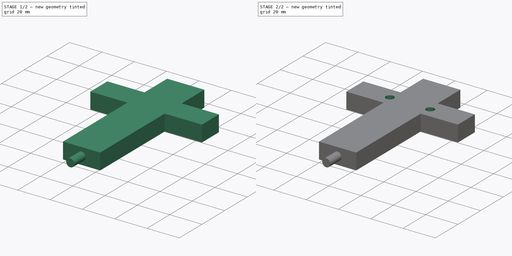
[diagram: build sequence overview — one tinted view per stage of 2, left to right]
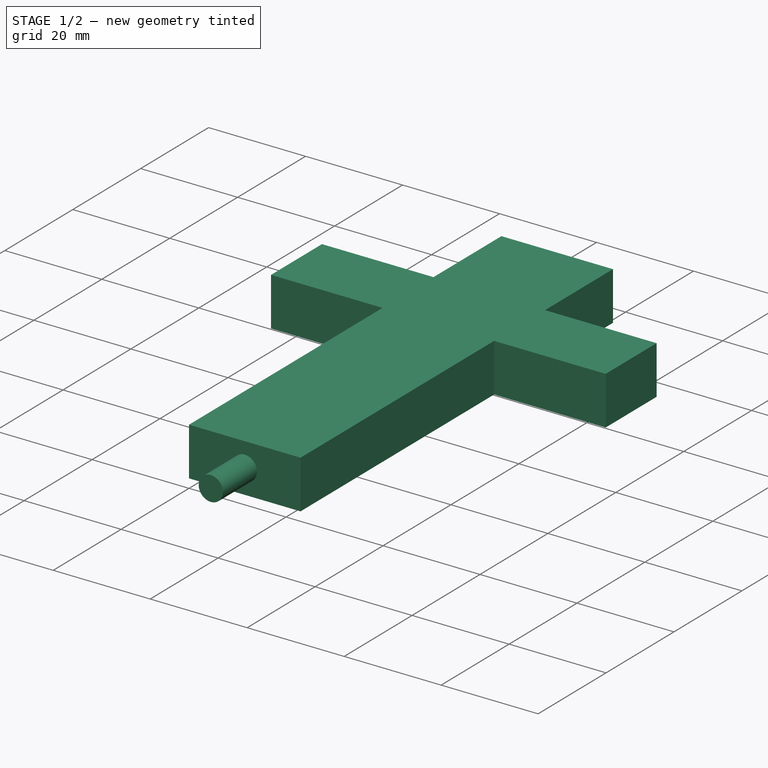
[diagram: stage 1 of 2 — iso view after this stage's code; geometry added in this stage tinted green]
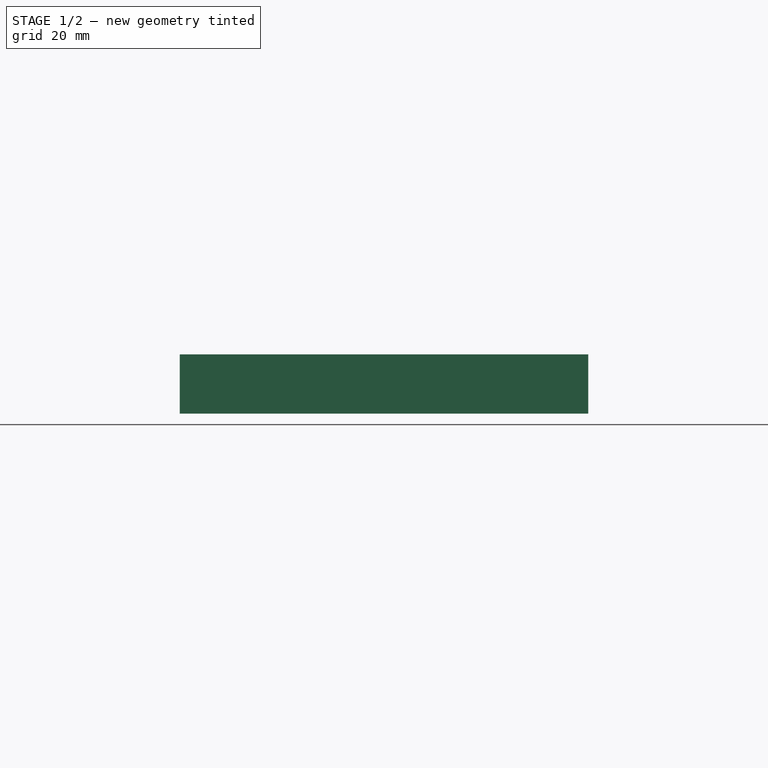
[diagram: stage 1 of 2 — front view after this stage's code; geometry added in this stage tinted green]
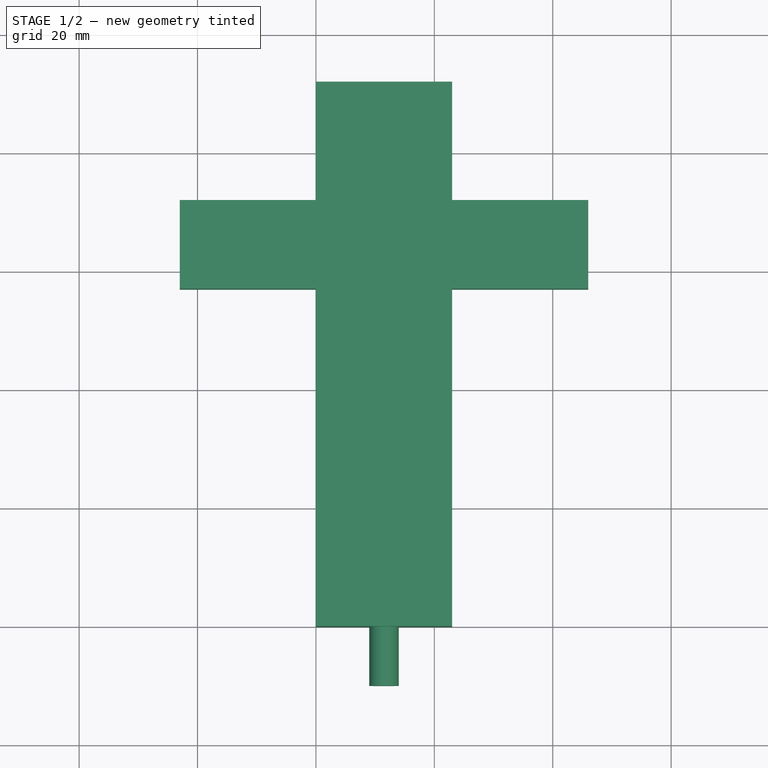
[diagram: stage 1 of 2 — top view after this stage's code; geometry added in this stage tinted green]
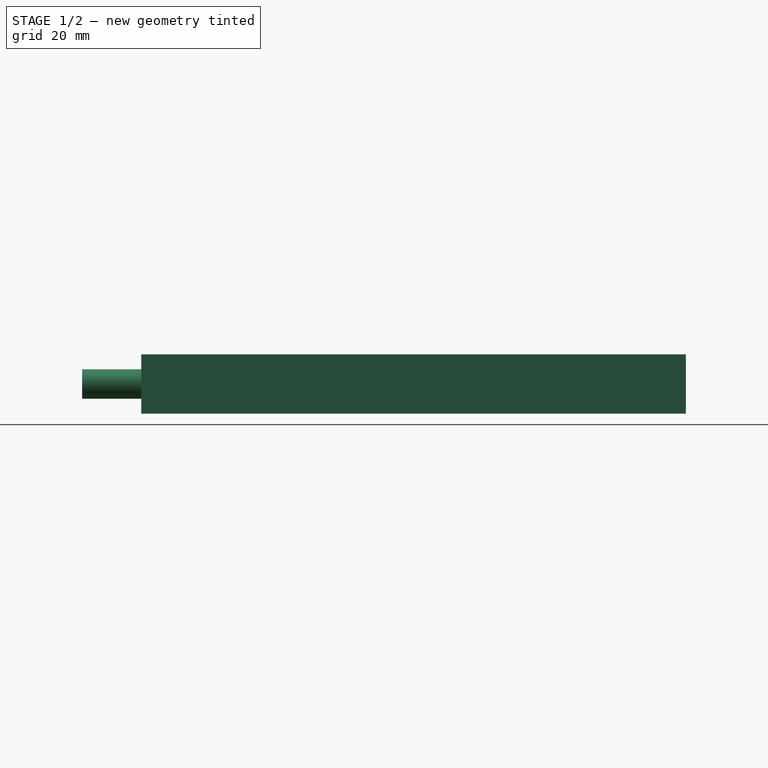
[diagram: stage 1 of 2 — right view after this stage's code; geometry added in this stage tinted green]
FCSTD DOCUMENT  (FreeCAD 0.16R)
Label: jar_camera_t
License: All rights reserved
LicenseURL: http://en.wikipedia.org/wiki/All_rights_reserved
objects: Sketcher::SketchObject×3, PartDesign::Pad×2, PartDesign::Pocket×1
note: 9 computed .brp shape members not serialized (recipe doc carries the construction recipe); baked Part::Feature solids carry a one-line shape summary decoded from their .brp

FEATURE [Sketcher::SketchObject] Sketch
  sketch-geometry (12):
    g0: LineSegment StartX=0 StartY=0 StartZ=0 EndX=23 EndY=0 EndZ=0
    g1: LineSegment StartX=23 StartY=0 StartZ=0 EndX=23 EndY=57 EndZ=0
    g2: LineSegment StartX=23 StartY=57 StartZ=0 EndX=46 EndY=57 EndZ=0
    g3: LineSegment StartX=46 StartY=57 StartZ=0 EndX=46 EndY=72 EndZ=0
    g4: LineSegment StartX=46 StartY=72 StartZ=0 EndX=23 EndY=72 EndZ=0
    g5: LineSegment StartX=23 StartY=72 StartZ=0 EndX=23 EndY=92 EndZ=0
    g6: LineSegment StartX=23 StartY=92 StartZ=0 EndX=0 EndY=92 EndZ=0
    g7: LineSegment StartX=0 StartY=92 StartZ=0 EndX=0 EndY=72 EndZ=0
    g8: LineSegment StartX=0 StartY=72 StartZ=0 EndX=-23 EndY=72 EndZ=0
    g9: LineSegment StartX=-23 StartY=72 StartZ=0 EndX=-23 EndY=57 EndZ=0
    g10: LineSegment StartX=-23 StartY=57 StartZ=0 EndX=0 EndY=57 EndZ=0
    g11: LineSegment StartX=0 StartY=57 StartZ=0 EndX=0 EndY=0 EndZ=0
  constraints (35):
    c: Coincident(g0,g-1)
    c: PointOnObject(g0,g-1)
    c: Coincident(g1,g0)
    c: Vertical(g1)
    c: Coincident(g2,g1)
    c: Horizontal(g2)
    c: Coincident(g3,g2)
    c: Vertical(g3)
    c: Coincident(g4,g3)
    c: Horizontal(g4)
    c: Coincident(g5,g4)
    c: Vertical(g5)
    c: Coincident(g6,g5)
    c: PointOnObject(g6,g-2)
    c: Horizontal(g6)
    c: Coincident(g7,g6)
    c: PointOnObject(g7,g-2)
    c: Coincident(g8,g7)
    c: Horizontal(g8)
    c: Coincident(g9,g8)
    c: Vertical(g9)
    c: Coincident(g10,g9)
    c: PointOnObject(g10,g-2)
    c: Coincident(g11,g10)
    c: Coincident(g11,g-1)
    c: Horizontal(g10)
    c: DistanceX(g9,g10) = 23
    c: DistanceX(g1,g2) = 23
    c: DistanceX(g-1,g0) = 23
    c: DistanceX(g6,g5) = 23
    c: DistanceY(g7,g4) = 0
    c: DistanceY(g-1,g6) = 92
    c: DistanceY(g4,g5) = 20
    c: DistanceY(g2,g3) = 15
    c: DistanceY(g9,g8) = 15
FEATURE [PartDesign::Pad] Pad
  Length = 10
  Length2 = 100
  Sketch = -> Sketch
  Type = 0
FEATURE [Sketcher::SketchObject] Sketch001
  Placement = pos=(0,0,0) rot=(1,0,0;1.5708rad)
  Support = -> Pad [Face1]
  sketch-geometry (1):
    g0: Circle CenterX=11.5 CenterY=5 CenterZ=0 NormalX=0 NormalY=0 NormalZ=1 Radius=2.5
  constraints (3):
    c: Radius(g0) = 2.5
    c: DistanceY(g-1,g0) = 5
    c: DistanceX(g-1,g0) = 11.5
FEATURE [PartDesign::Pad] Pad001
  Length = 10
  Length2 = 100
  Sketch = -> Sketch001
  Type = 0
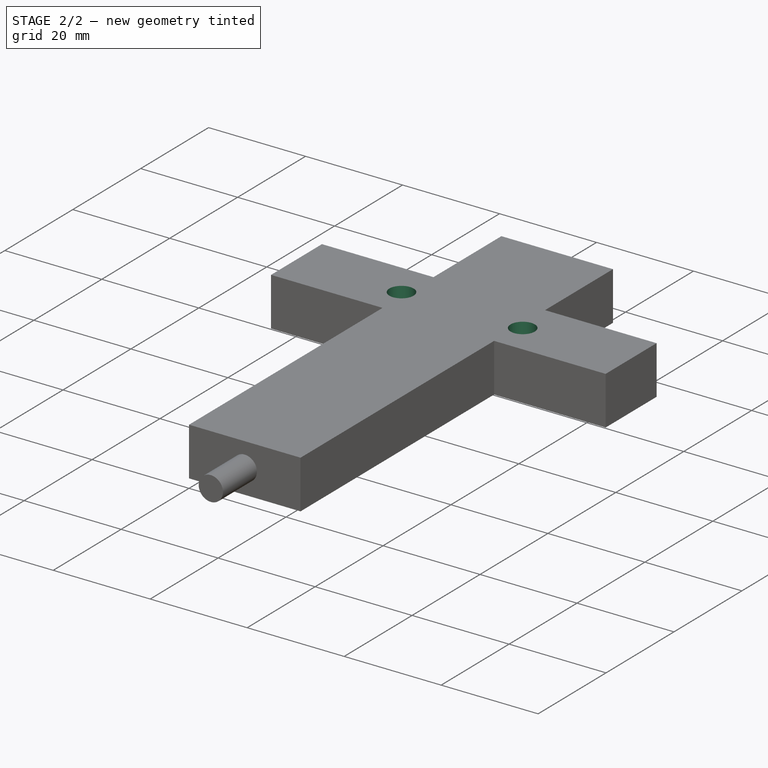
[diagram: stage 2 of 2 — iso view after this stage's code; geometry added in this stage tinted green]
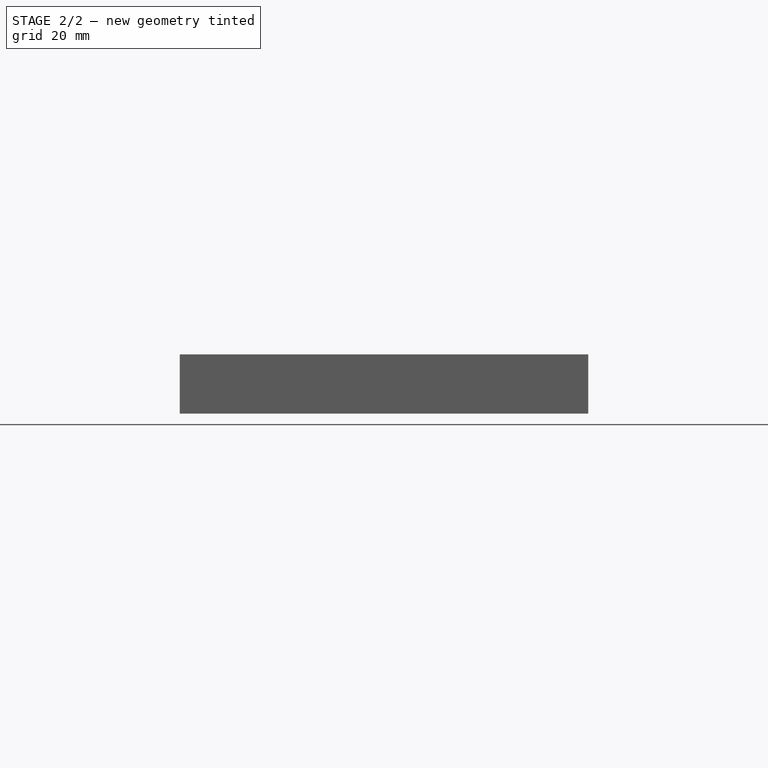
[diagram: stage 2 of 2 — front view after this stage's code; geometry added in this stage tinted green]
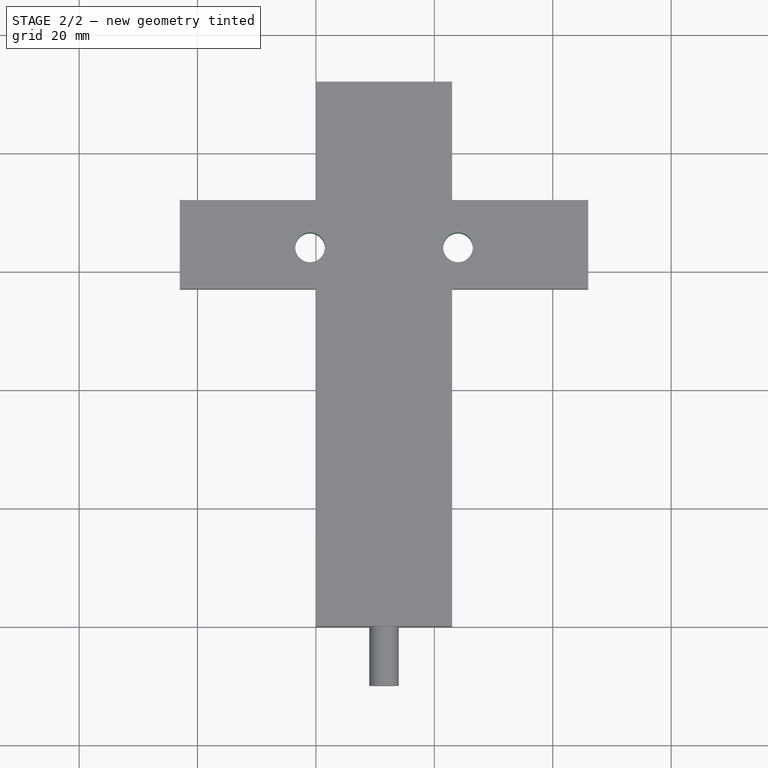
[diagram: stage 2 of 2 — top view after this stage's code; geometry added in this stage tinted green]
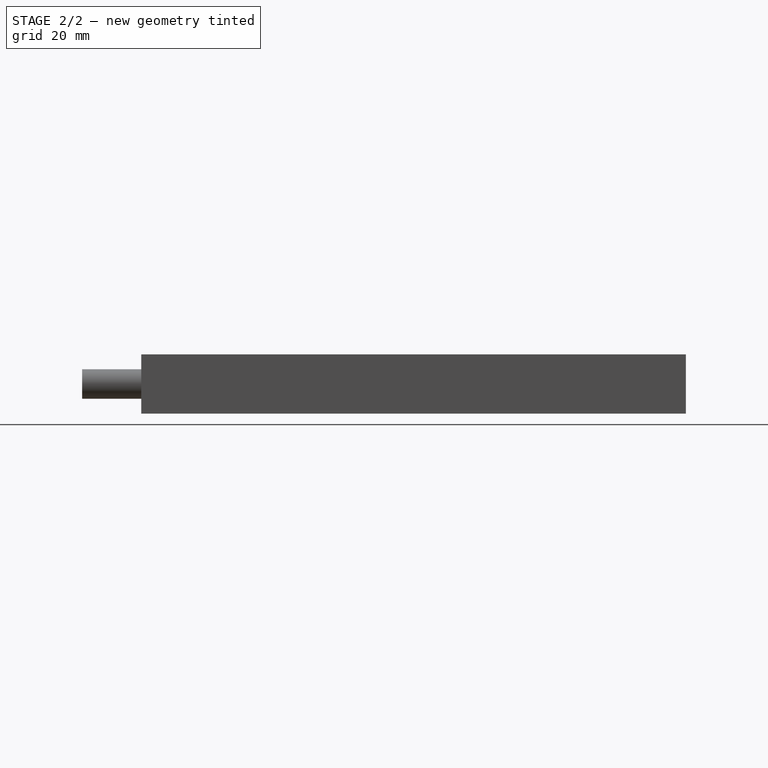
[diagram: stage 2 of 2 — right view after this stage's code; geometry added in this stage tinted green]
FEATURE [Sketcher::SketchObject] Sketch002
  Placement = pos=(0,0,10) rot=(0,0,1;0rad)
  Support = -> Pad001 [Face5]
  sketch-geometry (3):
    g0: GeomPoint [constr] X=11.5 Y=64 Z=0
    g1: Circle CenterX=24 CenterY=64 CenterZ=0 NormalX=0 NormalY=0 NormalZ=1 Radius=2.5
    g2: Circle CenterX=-1 CenterY=64 CenterZ=0 NormalX=0 NormalY=0 NormalZ=1 Radius=2.5
  constraints (8):
    c: DistanceX(g-1,g0) = 11.5
    c: DistanceX(g0,g1) = 12.5
    c: DistanceY(g0,g1) = 0
    c: DistanceX(g2,g0) = 12.5
    c: DistanceY(g0,g2) = 0
    c: Radius(g2) = 2.5
    c: Radius(g1) = 2.5
    c: DistanceY(g-1,g0) = 64
FEATURE [PartDesign::Pocket] Pocket
  Length = 10
  Sketch = -> Sketch002
  Type = 0
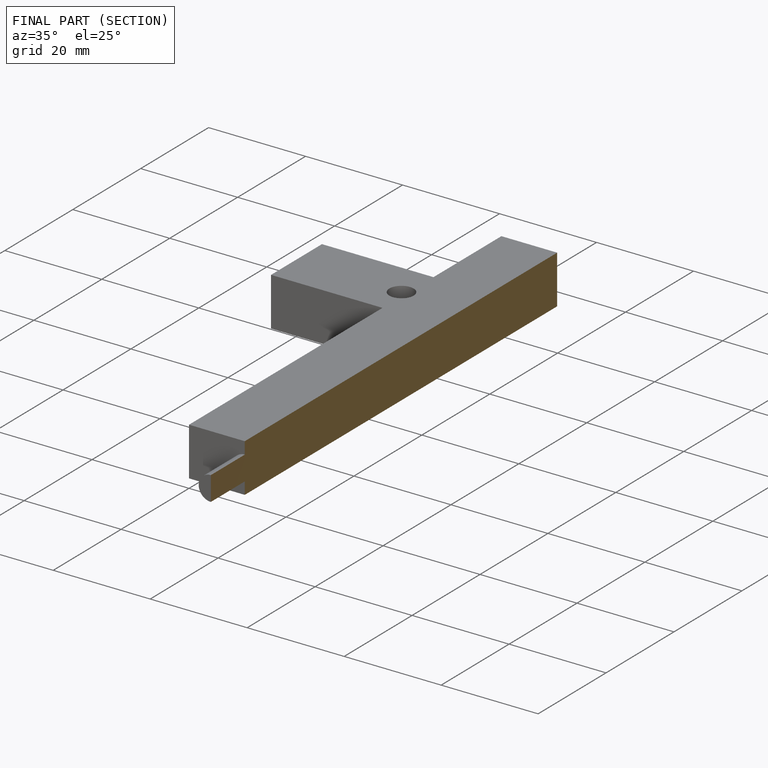
[diagram: finished part — half-section view (interior)]
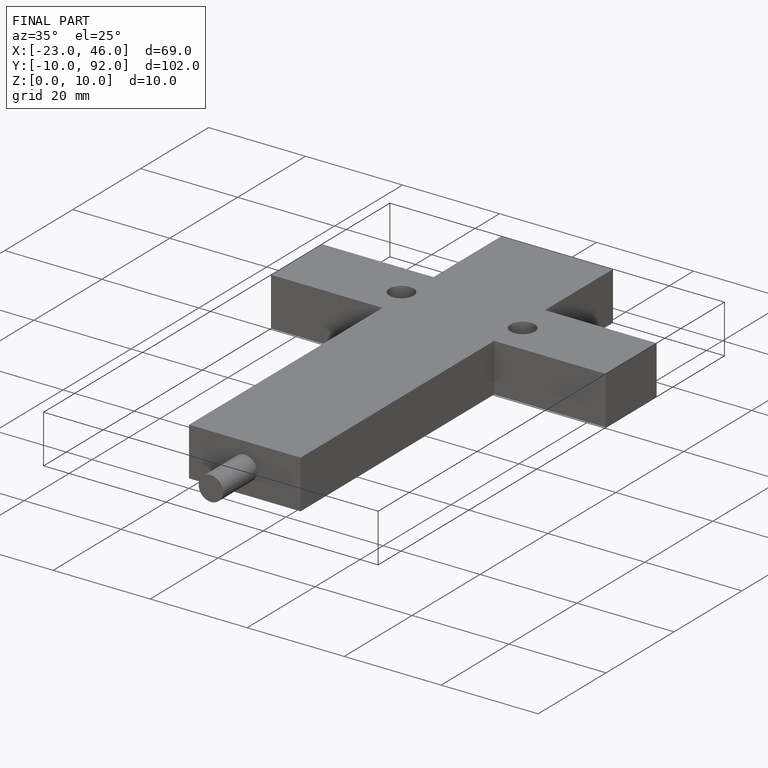
[diagram: finished part — iso view with bounding-box wireframe]
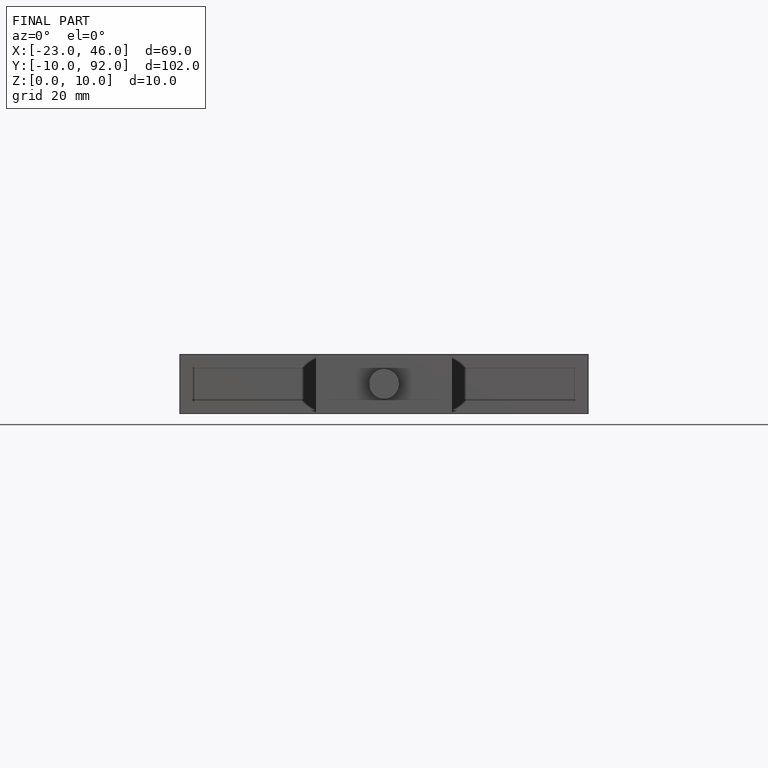
[diagram: finished part — front view with bounding-box wireframe]
